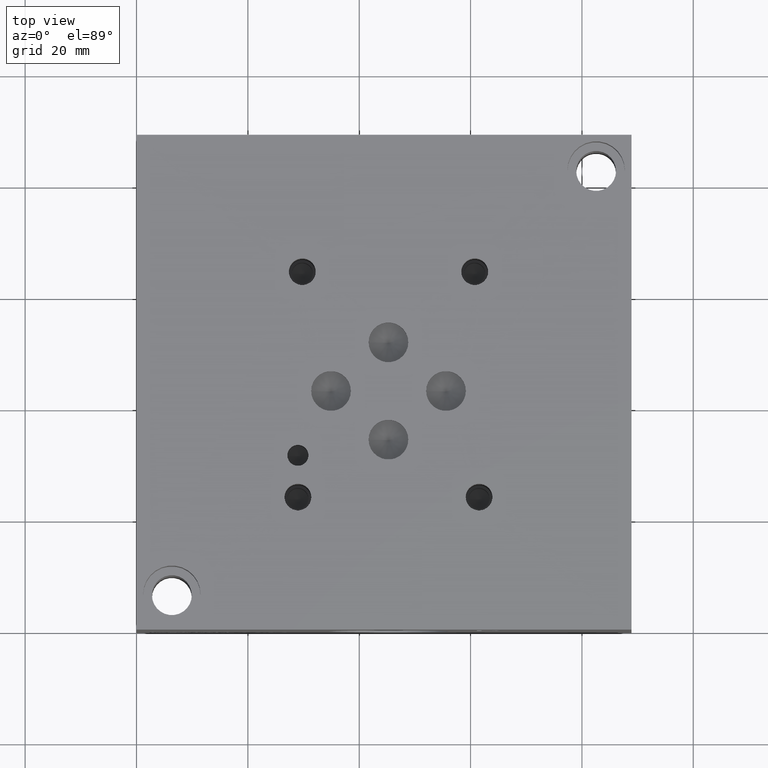
[diagram: clean part render]
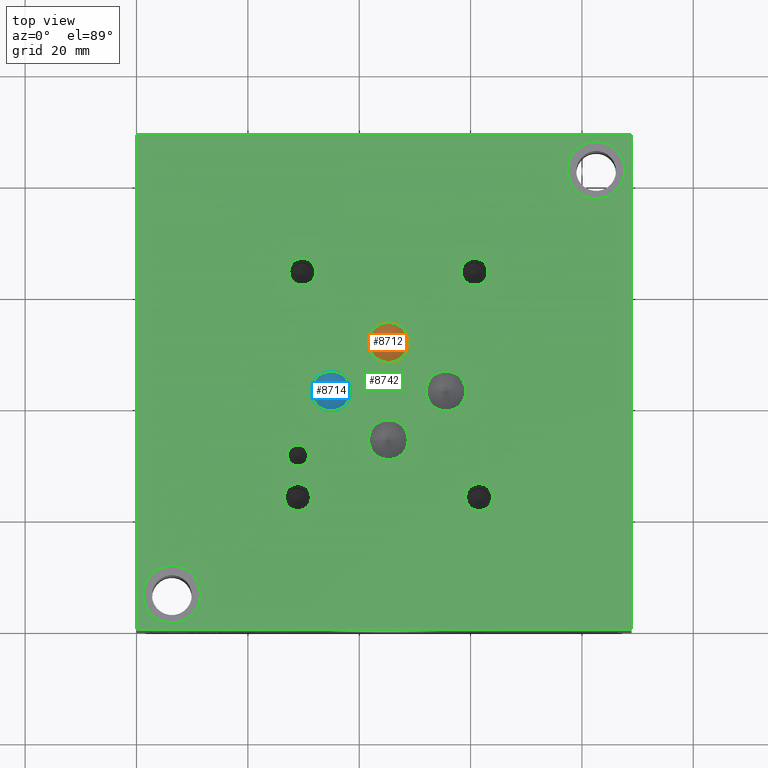
[diagram: same view with three faces highlighted in distinct colors, each labeled with its STEP entity id]
A machine part, top view with three faces highlighted in distinct colors.
Their STEP definitions:

[orange] entity #8712 — the highlighted conical surface has half-angle 60 deg.
#43=CONICAL_SURFACE('',#9073,1.78435,1.0471975511966);
#92=CIRCLE('',#9074,3.5687);
#93=CIRCLE('',#9075,3.5687);
#882=FACE_OUTER_BOUND('',#1368,.T.);
#1368=EDGE_LOOP('',(#7603,#7604,#7605,#7606));
#2235=LINE('',#14858,#3075);
#3075=VECTOR('',#10605,1.78435);
#4131=VERTEX_POINT('',#14854);
#4132=VERTEX_POINT('',#14855);
#4133=VERTEX_POINT('',#14857);
#5316=EDGE_CURVE('',#4131,#4132,#92,.T.);
#5317=EDGE_CURVE('',#4132,#4133,#2235,.T.);
#5318=EDGE_CURVE('',#4132,#4131,#93,.T.);
#7603=ORIENTED_EDGE('',*,*,#5316,.T.);
#7604=ORIENTED_EDGE('',*,*,#5317,.T.);
#7605=ORIENTED_EDGE('',*,*,#5317,.F.);
#7606=ORIENTED_EDGE('',*,*,#5318,.T.);
#8712=ADVANCED_FACE('',(#882),#43,.F.);
#9073=AXIS2_PLACEMENT_3D('',#14853,#10601,#10602);
#9074=AXIS2_PLACEMENT_3D('',#14856,#10603,#10604);
#9075=AXIS2_PLACEMENT_3D('',#14859,#10606,#10607);
#10601=DIRECTION('center_axis',(0.,0.,1.));
#10602=DIRECTION('ref_axis',(1.,0.,0.));
#10603=DIRECTION('center_axis',(0.,0.,1.));
#10604=DIRECTION('ref_axis',(1.,0.,0.));
#10605=DIRECTION('',(0.866025403784438,1.06057523872491E-16,-0.5));
#10606=DIRECTION('center_axis',(0.,0.,1.));
#10607=DIRECTION('ref_axis',(1.,0.,0.));
#14853=CARTESIAN_POINT('Origin',(45.2374,51.5874,35.0094150471715));
#14854=CARTESIAN_POINT('',(48.8061,51.5874,36.03961));
#14855=CARTESIAN_POINT('',(41.6687,51.5874,36.03961));
#14856=CARTESIAN_POINT('Origin',(45.2374,51.5874,36.03961));
#14857=CARTESIAN_POINT('',(45.2374,51.5874,33.979220094343));
#14858=CARTESIAN_POINT('',(43.45305,51.5874,35.0094150471715));
#14859=CARTESIAN_POINT('Origin',(45.2374,51.5874,36.03961));

[blue] entity #8714 — the highlighted conical surface has half-angle 60 deg.
#44=CONICAL_SURFACE('',#9079,1.78435,1.0471975511966);
#96=CIRCLE('',#9080,3.5687);
#97=CIRCLE('',#9081,3.5687);
#884=FACE_OUTER_BOUND('',#1370,.T.);
#1370=EDGE_LOOP('',(#7613,#7614,#7615,#7616));
#2237=LINE('',#14871,#3077);
#3077=VECTOR('',#10619,1.78435);
#4136=VERTEX_POINT('',#14867);
#4137=VERTEX_POINT('',#14868);
#4138=VERTEX_POINT('',#14870);
#5322=EDGE_CURVE('',#4136,#4137,#96,.T.);
#5323=EDGE_CURVE('',#4137,#4138,#2237,.T.);
#5324=EDGE_CURVE('',#4137,#4136,#97,.T.);
#7613=ORIENTED_EDGE('',*,*,#5322,.T.);
#7614=ORIENTED_EDGE('',*,*,#5323,.T.);
#7615=ORIENTED_EDGE('',*,*,#5323,.F.);
#7616=ORIENTED_EDGE('',*,*,#5324,.T.);
#8714=ADVANCED_FACE('',(#884),#44,.F.);
#9079=AXIS2_PLACEMENT_3D('',#14866,#10615,#10616);
#9080=AXIS2_PLACEMENT_3D('',#14869,#10617,#10618);
#9081=AXIS2_PLACEMENT_3D('',#14872,#10620,#10621);
#10615=DIRECTION('center_axis',(0.,0.,1.));
#10616=DIRECTION('ref_axis',(1.,0.,0.));
#10617=DIRECTION('center_axis',(0.,0.,1.));
#10618=DIRECTION('ref_axis',(1.,0.,0.));
#10619=DIRECTION('',(0.866025403784439,1.06057523872491E-16,-0.5));
#10620=DIRECTION('center_axis',(0.,0.,1.));
#10621=DIRECTION('ref_axis',(1.,0.,0.));
#14866=CARTESIAN_POINT('Origin',(34.925,42.8498,35.0094150471715));
#14867=CARTESIAN_POINT('',(38.4937,42.8498,36.03961));
#14868=CARTESIAN_POINT('',(31.3563,42.8498,36.03961));
#14869=CARTESIAN_POINT('Origin',(34.925,42.8498,36.03961));
#14870=CARTESIAN_POINT('',(34.925,42.8498,33.979220094343));
#14871=CARTESIAN_POINT('',(33.14065,42.8498,35.0094150471715));
#14872=CARTESIAN_POINT('Origin',(34.925,42.8498,36.03961));

[green] entity #8742 — the highlighted planar face has unit normal (0, 0, 1).
#83=CIRCLE('',#9060,5.1562);
#84=CIRCLE('',#9061,5.1562);
#89=CIRCLE('',#9069,5.1562);
#90=CIRCLE('',#9070,5.1562);
#94=CIRCLE('',#9077,3.5687);
#95=CIRCLE('',#9078,3.5687);
#98=CIRCLE('',#9083,3.5687);
#99=CIRCLE('',#9084,3.5687);
#102=CIRCLE('',#9089,3.5687);
#103=CIRCLE('',#9090,3.5687);
#106=CIRCLE('',#9095,3.5687);
#107=CIRCLE('',#9096,3.5687);
#110=CIRCLE('',#9101,1.8923);
#111=CIRCLE('',#9102,1.8923);
#117=CIRCLE('',#9111,2.413);
#118=CIRCLE('',#9112,2.413);
#124=CIRCLE('',#9122,2.413);
#125=CIRCLE('',#9123,2.413);
#131=CIRCLE('',#9133,2.413);
#132=CIRCLE('',#9134,2.413);
#138=CIRCLE('',#9144,2.413);
#139=CIRCLE('',#9145,2.413);
#189=FACE_BOUND('',#1405,.T.);
#190=FACE_BOUND('',#1406,.T.);
#191=FACE_BOUND('',#1407,.T.);
#192=FACE_BOUND('',#1408,.T.);
#193=FACE_BOUND('',#1409,.T.);
#194=FACE_BOUND('',#1410,.T.);
#195=FACE_BOUND('',#1411,.T.);
#196=FACE_BOUND('',#1412,.T.);
#197=FACE_BOUND('',#1413,.T.);
#198=FACE_BOUND('',#1414,.T.);
#199=FACE_BOUND('',#1415,.T.);
#469=PLANE('',#9151);
#912=FACE_OUTER_BOUND('',#1404,.T.);
#1404=EDGE_LOOP('',(#7756,#7757,#7758,#7759));
#1405=EDGE_LOOP('',(#7760,#7761));
#1406=EDGE_LOOP('',(#7762,#7763));
#1407=EDGE_LOOP('',(#7764,#7765));
#1408=EDGE_LOOP('',(#7766,#7767));
#1409=EDGE_LOOP('',(#7768,#7769));
#1410=EDGE_LOOP('',(#7770,#7771));
#1411=EDGE_LOOP('',(#7772,#7773));
#1412=EDGE_LOOP('',(#7774,#7775));
#1413=EDGE_LOOP('',(#7776,#7777));
#1414=EDGE_LOOP('',(#7778,#7779));
#1415=EDGE_LOOP('',(#7780,#7781));
#1701=LINE('',#13164,#2541);
#2141=LINE('',#14369,#2981);
#2217=LINE('',#14737,#3057);
#2258=LINE('',#15010,#3098);
#2541=VECTOR('',#9573,10.);
#2981=VECTOR('',#10335,10.);
#3057=VECTOR('',#10467,10.);
#3098=VECTOR('',#10778,10.);
#3701=VERTEX_POINT('',#13161);
#3702=VERTEX_POINT('',#13163);
#4026=VERTEX_POINT('',#14368);
#4090=VERTEX_POINT('',#14736);
#4122=VERTEX_POINT('',#14827);
#4123=VERTEX_POINT('',#14828);
#4128=VERTEX_POINT('',#14844);
#4129=VERTEX_POINT('',#14845);
#4134=VERTEX_POINT('',#14861);
#4135=VERTEX_POINT('',#14862);
#4139=VERTEX_POINT('',#14874);
#4140=VERTEX_POINT('',#14875);
#4144=VERTEX_POINT('',#14887);
#4145=VERTEX_POINT('',#14888);
#4149=VERTEX_POINT('',#14900);
#4150=VERTEX_POINT('',#14901);
#4154=VERTEX_POINT('',#14913);
#4155=VERTEX_POINT('',#14914);
#4162=VERTEX_POINT('',#14933);
#4163=VERTEX_POINT('',#14934);
#4170=VERTEX_POINT('',#14955);
#4171=VERTEX_POINT('',#14956);
#4178=VERTEX_POINT('',#14977);
#4179=VERTEX_POINT('',#14978);
#4186=VERTEX_POINT('',#14999);
#4187=VERTEX_POINT('',#15000);
#4682=EDGE_CURVE('',#3702,#3701,#1701,.T.);
#5162=EDGE_CURVE('',#4026,#3702,#2141,.T.);
#5262=EDGE_CURVE('',#4090,#4026,#2217,.T.);
#5303=EDGE_CURVE('',#4122,#4123,#83,.T.);
#5304=EDGE_CURVE('',#4123,#4122,#84,.T.);
#5311=EDGE_CURVE('',#4128,#4129,#89,.T.);
#5312=EDGE_CURVE('',#4129,#4128,#90,.T.);
#5319=EDGE_CURVE('',#4134,#4135,#94,.T.);
#5320=EDGE_CURVE('',#4135,#4134,#95,.T.);
#5325=EDGE_CURVE('',#4139,#4140,#98,.T.);
#5326=EDGE_CURVE('',#4140,#4139,#99,.T.);
#5331=EDGE_CURVE('',#4144,#4145,#102,.T.);
#5332=EDGE_CURVE('',#4145,#4144,#103,.T.);
#5337=EDGE_CURVE('',#4149,#4150,#106,.T.);
#5338=EDGE_CURVE('',#4150,#4149,#107,.T.);
#5343=EDGE_CURVE('',#4154,#4155,#110,.T.);
#5344=EDGE_CURVE('',#4155,#4154,#111,.T.);
#5352=EDGE_CURVE('',#4162,#4163,#117,.T.);
#5353=EDGE_CURVE('',#4163,#4162,#118,.T.);
#5362=EDGE_CURVE('',#4170,#4171,#124,.T.);
#5363=EDGE_CURVE('',#4171,#4170,#125,.T.);
#5372=EDGE_CURVE('',#4178,#4179,#131,.T.);
#5373=EDGE_CURVE('',#4179,#4178,#132,.T.);
#5382=EDGE_CURVE('',#4186,#4187,#138,.T.);
#5383=EDGE_CURVE('',#4187,#4186,#139,.T.);
#5387=EDGE_CURVE('',#3701,#4090,#2258,.T.);
#7756=ORIENTED_EDGE('',*,*,#4682,.T.);
#7757=ORIENTED_EDGE('',*,*,#5387,.T.);
#7758=ORIENTED_EDGE('',*,*,#5262,.T.);
#7759=ORIENTED_EDGE('',*,*,#5162,.T.);
#7760=ORIENTED_EDGE('',*,*,#5303,.T.);
#7761=ORIENTED_EDGE('',*,*,#5304,.T.);
#7762=ORIENTED_EDGE('',*,*,#5311,.T.);
#7763=ORIENTED_EDGE('',*,*,#5312,.T.);
#7764=ORIENTED_EDGE('',*,*,#5319,.T.);
#7765=ORIENTED_EDGE('',*,*,#5320,.T.);
#7766=ORIENTED_EDGE('',*,*,#5325,.T.);
#7767=ORIENTED_EDGE('',*,*,#5326,.T.);
#7768=ORIENTED_EDGE('',*,*,#5331,.T.);
#7769=ORIENTED_EDGE('',*,*,#5332,.T.);
#7770=ORIENTED_EDGE('',*,*,#5337,.T.);
#7771=ORIENTED_EDGE('',*,*,#5338,.T.);
#7772=ORIENTED_EDGE('',*,*,#5343,.T.);
#7773=ORIENTED_EDGE('',*,*,#5344,.T.);
#7774=ORIENTED_EDGE('',*,*,#5352,.T.);
#7775=ORIENTED_EDGE('',*,*,#5353,.T.);
#7776=ORIENTED_EDGE('',*,*,#5362,.T.);
#7777=ORIENTED_EDGE('',*,*,#5363,.T.);
#7778=ORIENTED_EDGE('',*,*,#5372,.T.);
#7779=ORIENTED_EDGE('',*,*,#5373,.T.);
#7780=ORIENTED_EDGE('',*,*,#5382,.T.);
#7781=ORIENTED_EDGE('',*,*,#5383,.T.);
#8742=ADVANCED_FACE('',(#912,#189,#190,#191,#192,#193,#194,#195,#196,#197,
#198,#199),#469,.T.);
#9060=AXIS2_PLACEMENT_3D('',#14829,#10571,#10572);
#9061=AXIS2_PLACEMENT_3D('',#14830,#10573,#10574);
#9069=AXIS2_PLACEMENT_3D('',#14846,#10591,#10592);
#9070=AXIS2_PLACEMENT_3D('',#14847,#10593,#10594);
#9077=AXIS2_PLACEMENT_3D('',#14863,#10610,#10611);
#9078=AXIS2_PLACEMENT_3D('',#14864,#10612,#10613);
#9083=AXIS2_PLACEMENT_3D('',#14876,#10624,#10625);
#9084=AXIS2_PLACEMENT_3D('',#14877,#10626,#10627);
#9089=AXIS2_PLACEMENT_3D('',#14889,#10638,#10639);
#9090=AXIS2_PLACEMENT_3D('',#14890,#10640,#10641);
#9095=AXIS2_PLACEMENT_3D('',#14902,#10652,#10653);
#9096=AXIS2_PLACEMENT_3D('',#14903,#10654,#10655);
#9101=AXIS2_PLACEMENT_3D('',#14915,#10666,#10667);
#9102=AXIS2_PLACEMENT_3D('',#14916,#10668,#10669);
#9111=AXIS2_PLACEMENT_3D('',#14935,#10688,#10689);
#9112=AXIS2_PLACEMENT_3D('',#14936,#10690,#10691);
#9122=AXIS2_PLACEMENT_3D('',#14957,#10713,#10714);
#9123=AXIS2_PLACEMENT_3D('',#14958,#10715,#10716);
#9133=AXIS2_PLACEMENT_3D('',#14979,#10738,#10739);
#9134=AXIS2_PLACEMENT_3D('',#14980,#10740,#10741);
#9144=AXIS2_PLACEMENT_3D('',#15001,#10763,#10764);
#9145=AXIS2_PLACEMENT_3D('',#15002,#10765,#10766);
#9151=AXIS2_PLACEMENT_3D('',#15012,#10781,#10782);
#9573=DIRECTION('',(1.,0.,0.));
#10335=DIRECTION('',(0.,-1.,0.));
#10467=DIRECTION('',(-1.,0.,0.));
#10571=DIRECTION('center_axis',(0.,0.,-1.));
#10572=DIRECTION('ref_axis',(1.,0.,0.));
#10573=DIRECTION('center_axis',(0.,0.,-1.));
#10574=DIRECTION('ref_axis',(1.,0.,0.));
#10591=DIRECTION('center_axis',(0.,0.,-1.));
#10592=DIRECTION('ref_axis',(1.,0.,0.));
#10593=DIRECTION('center_axis',(0.,0.,-1.));
#10594=DIRECTION('ref_axis',(1.,0.,0.));
#10610=DIRECTION('center_axis',(0.,0.,-1.));
#10611=DIRECTION('ref_axis',(1.,0.,0.));
#10612=DIRECTION('center_axis',(0.,0.,-1.));
#10613=DIRECTION('ref_axis',(1.,0.,0.));
#10624=DIRECTION('center_axis',(0.,0.,-1.));
#10625=DIRECTION('ref_axis',(1.,0.,0.));
#10626=DIRECTION('center_axis',(0.,0.,-1.));
#10627=DIRECTION('ref_axis',(1.,0.,0.));
#10638=DIRECTION('center_axis',(0.,0.,-1.));
#10639=DIRECTION('ref_axis',(1.,0.,0.));
#10640=DIRECTION('center_axis',(0.,0.,-1.));
#10641=DIRECTION('ref_axis',(1.,0.,0.));
#10652=DIRECTION('center_axis',(0.,0.,-1.));
#10653=DIRECTION('ref_axis',(1.,0.,0.));
#10654=DIRECTION('center_axis',(0.,0.,-1.));
#10655=DIRECTION('ref_axis',(1.,0.,0.));
#10666=DIRECTION('center_axis',(0.,0.,-1.));
#10667=DIRECTION('ref_axis',(1.,0.,0.));
#10668=DIRECTION('center_axis',(0.,0.,-1.));
#10669=DIRECTION('ref_axis',(1.,0.,0.));
#10688=DIRECTION('center_axis',(0.,0.,-1.));
#10689=DIRECTION('ref_axis',(1.,0.,0.));
#10690=DIRECTION('center_axis',(0.,0.,-1.));
#10691=DIRECTION('ref_axis',(1.,0.,0.));
#10713=DIRECTION('center_axis',(0.,0.,-1.));
#10714=DIRECTION('ref_axis',(1.,0.,0.));
#10715=DIRECTION('center_axis',(0.,0.,-1.));
#10716=DIRECTION('ref_axis',(1.,0.,0.));
#10738=DIRECTION('center_axis',(0.,0.,-1.));
#10739=DIRECTION('ref_axis',(1.,0.,0.));
#10740=DIRECTION('center_axis',(0.,0.,-1.));
#10741=DIRECTION('ref_axis',(1.,0.,0.));
#10763=DIRECTION('center_axis',(0.,0.,-1.));
#10764=DIRECTION('ref_axis',(1.,0.,0.));
#10765=DIRECTION('center_axis',(0.,0.,-1.));
#10766=DIRECTION('ref_axis',(1.,0.,0.));
#10778=DIRECTION('',(0.,1.,0.));
#10781=DIRECTION('center_axis',(0.,0.,1.));
#10782=DIRECTION('ref_axis',(1.,0.,0.));
#13161=CARTESIAN_POINT('',(88.9,0.,38.1));
#13163=CARTESIAN_POINT('',(0.,0.,38.1));
#13164=CARTESIAN_POINT('',(0.,0.,38.1));
#14368=CARTESIAN_POINT('',(0.,88.9,38.1));
#14369=CARTESIAN_POINT('',(0.,88.9,38.1));
#14736=CARTESIAN_POINT('',(88.9,88.9,38.1));
#14737=CARTESIAN_POINT('',(88.9,88.9,38.1));
#14827=CARTESIAN_POINT('',(87.7062,82.55,38.1));
#14828=CARTESIAN_POINT('',(77.3938,82.55,38.1));
#14829=CARTESIAN_POINT('Origin',(82.55,82.55,38.1));
#14830=CARTESIAN_POINT('Origin',(82.55,82.55,38.1));
#14844=CARTESIAN_POINT('',(11.5062,6.35,38.1));
#14845=CARTESIAN_POINT('',(1.1938,6.35,38.1));
#14846=CARTESIAN_POINT('Origin',(6.35,6.35,38.1));
#14847=CARTESIAN_POINT('Origin',(6.35,6.35,38.1));
#14861=CARTESIAN_POINT('',(48.8061,51.5874,38.1));
#14862=CARTESIAN_POINT('',(41.6687,51.5874,38.1));
#14863=CARTESIAN_POINT('Origin',(45.2374,51.5874,38.1));
#14864=CARTESIAN_POINT('Origin',(45.2374,51.5874,38.1));
#14874=CARTESIAN_POINT('',(38.4937,42.8498,38.1));
#14875=CARTESIAN_POINT('',(31.3563,42.8498,38.1));
#14876=CARTESIAN_POINT('Origin',(34.925,42.8498,38.1));
#14877=CARTESIAN_POINT('Origin',(34.925,42.8498,38.1));
#14887=CARTESIAN_POINT('',(59.1439,42.8498,38.1));
#14888=CARTESIAN_POINT('',(52.0065,42.8498,38.1));
#14889=CARTESIAN_POINT('Origin',(55.5752,42.8498,38.1));
#14890=CARTESIAN_POINT('Origin',(55.5752,42.8498,38.1));
#14900=CARTESIAN_POINT('',(48.8061,34.1122,38.1));
#14901=CARTESIAN_POINT('',(41.6687,34.1122,38.1));
#14902=CARTESIAN_POINT('Origin',(45.2374,34.1122,38.1));
#14903=CARTESIAN_POINT('Origin',(45.2374,34.1122,38.1));
#14913=CARTESIAN_POINT('',(30.8737,31.2928,38.1));
#14914=CARTESIAN_POINT('',(27.0891,31.2928,38.1));
#14915=CARTESIAN_POINT('Origin',(28.9814,31.2928,38.1));
#14916=CARTESIAN_POINT('Origin',(28.9814,31.2928,38.1));
#14933=CARTESIAN_POINT('',(63.9318,23.7998,38.1));
#14934=CARTESIAN_POINT('',(59.1058,23.7998,38.1));
#14935=CARTESIAN_POINT('Origin',(61.5188,23.7998,38.1));
#14936=CARTESIAN_POINT('Origin',(61.5188,23.7998,38.1));
#14955=CARTESIAN_POINT('',(32.1818,64.2874,38.1));
#14956=CARTESIAN_POINT('',(27.3558,64.2874,38.1));
#14957=CARTESIAN_POINT('Origin',(29.7688,64.2874,38.1));
#14958=CARTESIAN_POINT('Origin',(29.7688,64.2874,38.1));
#14977=CARTESIAN_POINT('',(63.1444,64.2874,38.1));
#14978=CARTESIAN_POINT('',(58.3184,64.2874,38.1));
#14979=CARTESIAN_POINT('Origin',(60.7314,64.2874,38.1));
#14980=CARTESIAN_POINT('Origin',(60.7314,64.2874,38.1));
#14999=CARTESIAN_POINT('',(31.3944,23.7998,38.1));
#15000=CARTESIAN_POINT('',(26.5684,23.7998,38.1));
#15001=CARTESIAN_POINT('Origin',(28.9814,23.7998,38.1));
#15002=CARTESIAN_POINT('Origin',(28.9814,23.7998,38.1));
#15010=CARTESIAN_POINT('',(88.9,0.,38.1));
#15012=CARTESIAN_POINT('Origin',(44.45,44.45,38.1));